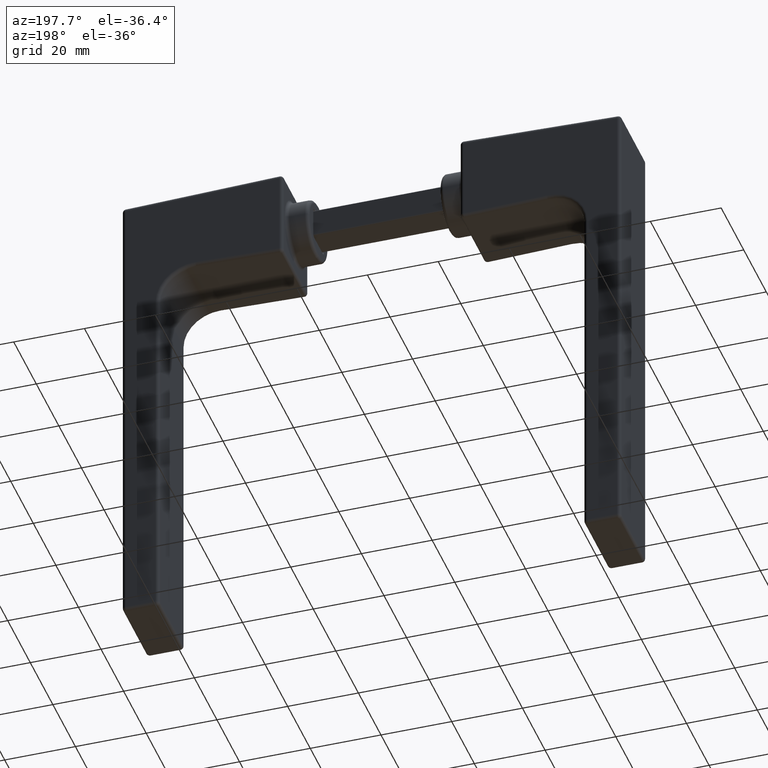
[diagram: clean part render]
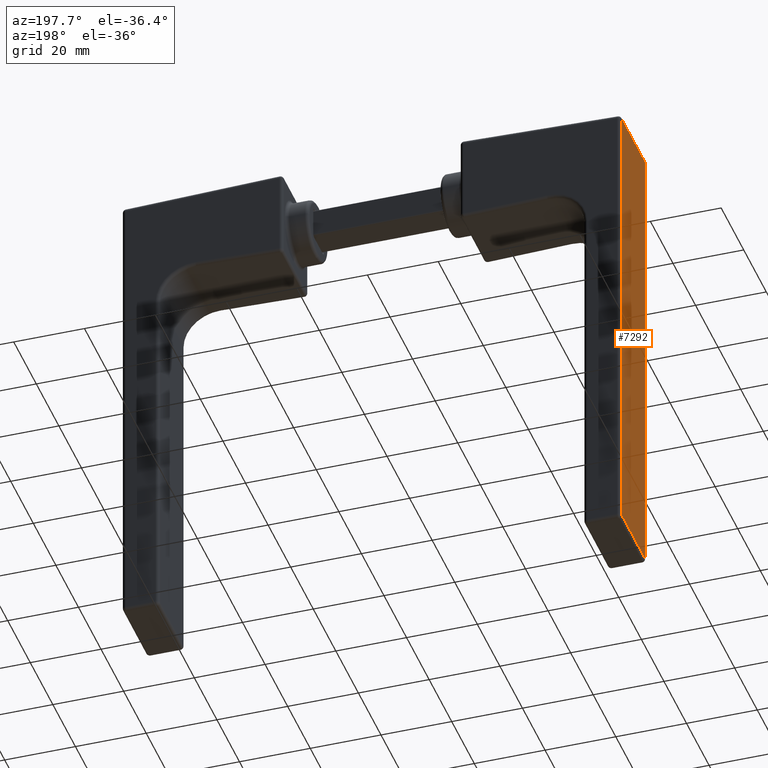
[diagram: same view with one face highlighted and labeled with its STEP entity id]
A machine part, auxiliary view. The second image highlights one B-rep face of the part: STEP entity #7292.
In plain terms, the highlighted planar face has unit normal (1, 0, 0).
Its self-contained STEP definition (entity closure, byte-faithful):
#434 = EDGE_LOOP ( 'NONE', ( #2108, #2162, #11253, #6214 ) ) ;
#1141 = CARTESIAN_POINT ( 'NONE',  ( -45.50000000000000000, -10.24999999999999822, -121.9999999999999432 ) ) ;
#1207 = DIRECTION ( 'NONE',  ( 0.000000000000000000, 0.000000000000000000, -1.000000000000000000 ) ) ;
#2108 = ORIENTED_EDGE ( 'NONE', *, *, #15124, .T. ) ;
#2162 = ORIENTED_EDGE ( 'NONE', *, *, #12185, .T. ) ;
#2765 = VERTEX_POINT ( 'NONE', #9495 ) ;
#4116 = CARTESIAN_POINT ( 'NONE',  ( -45.50000000000000000, 11.25000000000000000, -121.9999999999999432 ) ) ;
#4440 = VERTEX_POINT ( 'NONE', #15437 ) ;
#5383 = DIRECTION ( 'NONE',  ( -0.000000000000000000, -1.000000000000000000, 0.000000000000000000 ) ) ;
#6132 = LINE ( 'NONE', #4116, #13112 ) ;
#6214 = ORIENTED_EDGE ( 'NONE', *, *, #11182, .T. ) ;
#7056 = CARTESIAN_POINT ( 'NONE',  ( -45.50000000000000000, 10.24999999999999822, 11.36822260268396256 ) ) ;
#7092 = VERTEX_POINT ( 'NONE', #7897 ) ;
#7292 = ADVANCED_FACE ( 'NONE', ( #7656 ), #8521, .F. ) ;
#7656 = FACE_OUTER_BOUND ( 'NONE', #434, .T. ) ;
#7792 = VECTOR ( 'NONE', #8358, 1000.000000000000000 ) ;
#7897 = CARTESIAN_POINT ( 'NONE',  ( -45.50000000000000000, -10.24999999999999822, 10.39813031295975776 ) ) ;
#8358 = DIRECTION ( 'NONE',  ( -0.000000000000000000, -0.000000000000000000, -1.000000000000000000 ) ) ;
#8388 = VECTOR ( 'NONE', #8403, 1000.000000000000000 ) ;
#8403 = DIRECTION ( 'NONE',  ( -0.000000000000000000, 0.000000000000000000, 1.000000000000000000 ) ) ;
#8419 = CARTESIAN_POINT ( 'NONE',  ( -45.50000000000000000, 11.25000000000000000, 11.36822260268396256 ) ) ;
#8521 = PLANE ( 'NONE',  #14701 ) ;
#8809 = EDGE_CURVE ( 'NONE', #4440, #10782, #6132, .T. ) ;
#9495 = CARTESIAN_POINT ( 'NONE',  ( -45.50000000000000000, 10.24999999999999822, 10.39813031295975776 ) ) ;
#9516 = LINE ( 'NONE', #10566, #8388 ) ;
#10448 = DIRECTION ( 'NONE',  ( 0.000000000000000000, 1.000000000000000000, -0.000000000000000000 ) ) ;
#10566 = CARTESIAN_POINT ( 'NONE',  ( -45.50000000000000000, -10.24999999999999822, 11.36822260268396256 ) ) ;
#10782 = VERTEX_POINT ( 'NONE', #1141 ) ;
#11182 = EDGE_CURVE ( 'NONE', #10782, #7092, #9516, .T. ) ;
#11253 = ORIENTED_EDGE ( 'NONE', *, *, #8809, .T. ) ;
#12185 = EDGE_CURVE ( 'NONE', #2765, #4440, #14606, .T. ) ;
#12456 = VECTOR ( 'NONE', #10448, 1000.000000000000000 ) ;
#13112 = VECTOR ( 'NONE', #5383, 1000.000000000000000 ) ;
#14606 = LINE ( 'NONE', #7056, #7792 ) ;
#14701 = AXIS2_PLACEMENT_3D ( 'NONE', #8419, #15610, #1207 ) ;
#15124 = EDGE_CURVE ( 'NONE', #7092, #2765, #15299, .T. ) ;
#15205 = CARTESIAN_POINT ( 'NONE',  ( -45.50000000000000000, 11.25000000000000000, 10.39813031295975776 ) ) ;
#15299 = LINE ( 'NONE', #15205, #12456 ) ;
#15437 = CARTESIAN_POINT ( 'NONE',  ( -45.50000000000000000, 10.24999999999999822, -121.9999999999999432 ) ) ;
#15610 = DIRECTION ( 'NONE',  ( 1.000000000000000000, -0.000000000000000000, 0.000000000000000000 ) ) ;